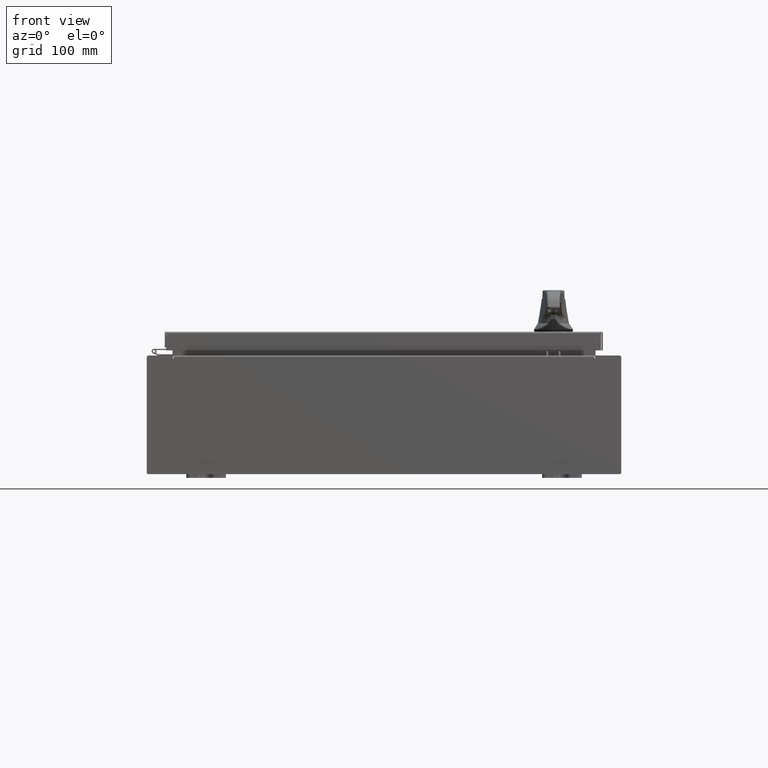
[diagram: clean part render]
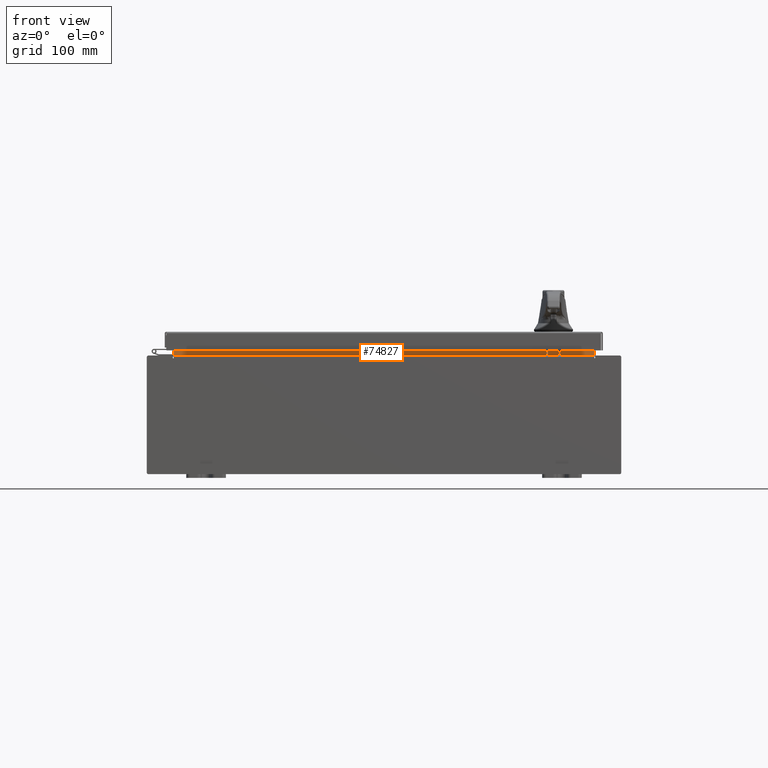
[diagram: same view with one face highlighted and labeled with its STEP entity id]
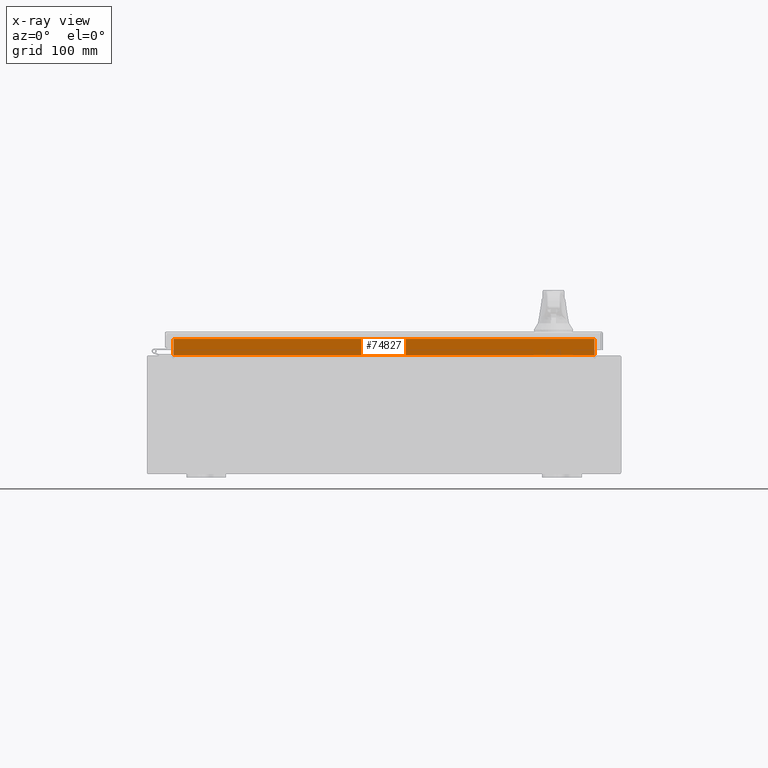
[diagram: x-ray of the same camera — body ghosted, the highlighted face saturated]
A machine part, front view. The second image highlights one B-rep face of the part: STEP entity #74827.
The next image is the same camera in x-ray: the body ghosted, the highlighted face saturated — about 0% of this face is hidden behind the body in this view.
In plain terms, the highlighted planar face has unit normal (0, -1, 0).
Its self-contained STEP definition (entity closure, byte-faithful):
#113 = DIRECTION ( 'NONE',  ( -0.0000000000000000000, -0.0000000000000000000, -1.000000000000000000 ) ) ;
#525 = CARTESIAN_POINT ( 'NONE',  ( 0.0000000000000000000, -1.300299999999999800, 0.0000000000000000000 ) ) ;
#3728 = EDGE_CURVE ( 'NONE', #61369, #83878, #89805, .T. ) ;
#11391 = CARTESIAN_POINT ( 'NONE',  ( 10.63720000000000200, -1.300299999999999800, 3.925300000000005300 ) ) ;
#16838 = LINE ( 'NONE', #11391, #57976 ) ;
#19462 = ORIENTED_EDGE ( 'NONE', *, *, #30488, .F. ) ;
#22281 = ORIENTED_EDGE ( 'NONE', *, *, #56285, .F. ) ;
#22523 = VECTOR ( 'NONE', #57420, 39.37007874015748100 ) ;
#24730 = ORIENTED_EDGE ( 'NONE', *, *, #3728, .F. ) ;
#28261 = VECTOR ( 'NONE', #113, 39.37007874015748100 ) ;
#30047 = FACE_OUTER_BOUND ( 'NONE', #84825, .T. ) ;
#30488 = EDGE_CURVE ( 'NONE', #68712, #61369, #51598, .T. ) ;
#30746 = ORIENTED_EDGE ( 'NONE', *, *, #61412, .F. ) ;
#33762 = VECTOR ( 'NONE', #100437, 39.37007874015748100 ) ;
#35790 = DIRECTION ( 'NONE',  ( 0.0000000000000000000, -0.0000000000000000000, 1.000000000000000000 ) ) ;
#49360 = AXIS2_PLACEMENT_3D ( 'NONE', #525, #88291, #35790 ) ;
#51598 = LINE ( 'NONE', #87529, #28261 ) ;
#53175 = CARTESIAN_POINT ( 'NONE',  ( -10.63720000000000200, -1.300299999999999800, 3.013000000000005200 ) ) ;
#56285 = EDGE_CURVE ( 'NONE', #56710, #68712, #57052, .T. ) ;
#56710 = VERTEX_POINT ( 'NONE', #71579 ) ;
#57052 = LINE ( 'NONE', #82823, #33762 ) ;
#57420 = DIRECTION ( 'NONE',  ( 1.000000000000000000, 0.0000000000000000000, -5.136404305013091600E-017 ) ) ;
#57976 = VECTOR ( 'NONE', #90010, 39.37007874015748100 ) ;
#61369 = VERTEX_POINT ( 'NONE', #71946 ) ;
#61412 = EDGE_CURVE ( 'NONE', #83878, #56710, #16838, .T. ) ;
#68712 = VERTEX_POINT ( 'NONE', #108269 ) ;
#71579 = CARTESIAN_POINT ( 'NONE',  ( 10.63720000000000200, -1.300299999999999800, 3.837600000000005000 ) ) ;
#71946 = CARTESIAN_POINT ( 'NONE',  ( -10.63720000000000400, -1.300299999999999800, 3.013000000000004800 ) ) ;
#74827 = ADVANCED_FACE ( 'NONE', ( #30047 ), #79499, .T. ) ;
#79499 = PLANE ( 'NONE',  #49360 ) ;
#82823 = CARTESIAN_POINT ( 'NONE',  ( 10.63720000000000200, -1.300300000000000200, 3.837600000000005000 ) ) ;
#83878 = VERTEX_POINT ( 'NONE', #102269 ) ;
#84825 = EDGE_LOOP ( 'NONE', ( #19462, #22281, #30746, #24730 ) ) ;
#87529 = CARTESIAN_POINT ( 'NONE',  ( -10.63720000000000200, -1.300299999999999800, 3.000000000000005300 ) ) ;
#88291 = DIRECTION ( 'NONE',  ( 0.0000000000000000000, 1.000000000000000000, 0.0000000000000000000 ) ) ;
#89805 = LINE ( 'NONE', #53175, #22523 ) ;
#90010 = DIRECTION ( 'NONE',  ( -0.0000000000000000000, -0.0000000000000000000, 1.000000000000000000 ) ) ;
#100437 = DIRECTION ( 'NONE',  ( -1.000000000000000000, -0.0000000000000000000, -0.0000000000000000000 ) ) ;
#102269 = CARTESIAN_POINT ( 'NONE',  ( 10.63720000000000400, -1.300299999999999800, 3.013000000000004800 ) ) ;
#108269 = CARTESIAN_POINT ( 'NONE',  ( -10.63720000000000200, -1.300300000000000200, 3.837600000000005000 ) ) ;